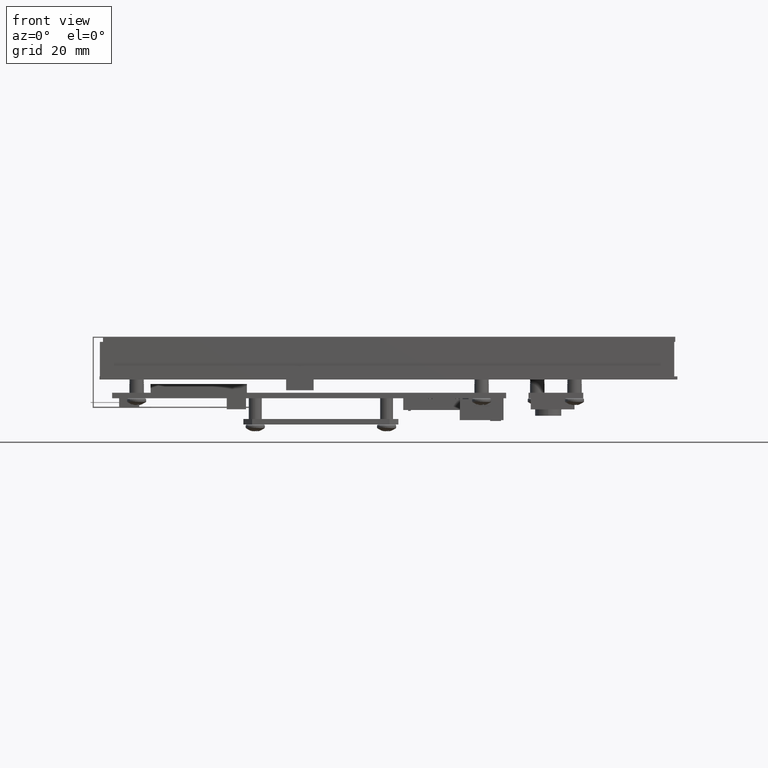
[diagram: clean part render]
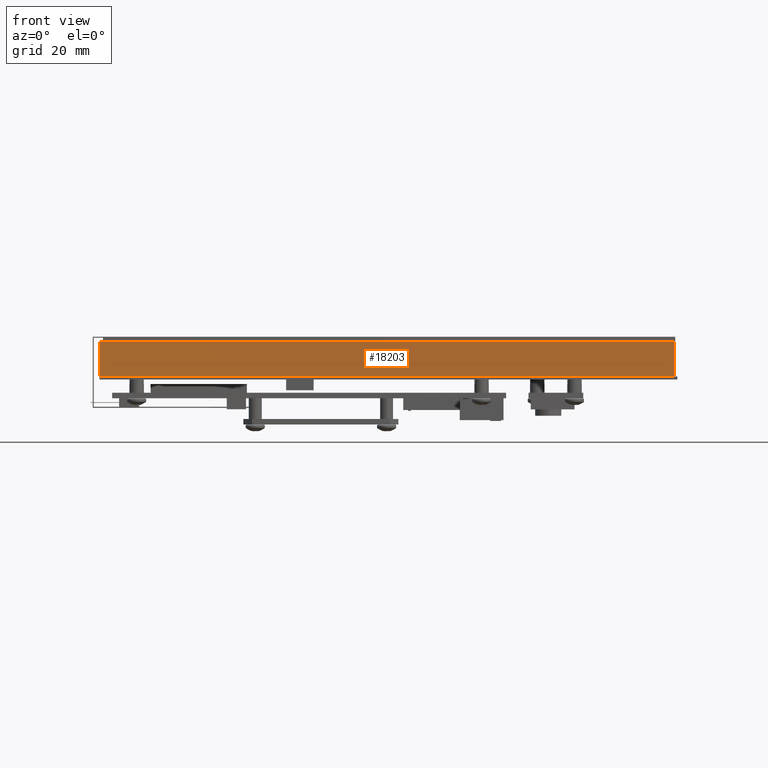
[diagram: same view with one face highlighted and labeled with its STEP entity id]
A machine part, front view. The second image highlights one B-rep face of the part: STEP entity #18203.
In plain terms, the highlighted planar face has unit normal (0, 1, 0).
Its self-contained STEP definition (entity closure, byte-faithful):
#1300 = VECTOR ( 'NONE', #10913, 39.37007874015748100 ) ;
#1315 = VECTOR ( 'NONE', #10982, 39.37007874015748100 ) ;
#1318 = VECTOR ( 'NONE', #11003, 39.37007874015748100 ) ;
#1319 = VECTOR ( 'NONE', #11010, 39.37007874015748100 ) ;
#5974 = AXIS2_PLACEMENT_3D ( 'NONE', #13046, #13058, #13059 ) ;
#8444 = VERTEX_POINT ( 'NONE', #9350 ) ;
#8450 = VERTEX_POINT ( 'NONE', #9354 ) ;
#8452 = VERTEX_POINT ( 'NONE', #9355 ) ;
#8453 = VERTEX_POINT ( 'NONE', #9356 ) ;
#9350 = CARTESIAN_POINT ( 'NONE',  ( -3.279527559055118100, -2.153543307086614300, 0.0000000000000000000 ) ) ;
#9354 = CARTESIAN_POINT ( 'NONE',  ( 3.279527559055118100, -2.153543307086614800, 0.0000000000000000000 ) ) ;
#9355 = CARTESIAN_POINT ( 'NONE',  ( -3.279527559055118100, -2.153543307086614300, 0.3937007874015748300 ) ) ;
#9356 = CARTESIAN_POINT ( 'NONE',  ( 3.279527559055118100, -2.153543307086614800, 0.3937007874015748300 ) ) ;
#10886 = LINE ( 'NONE', #10909, #1300 ) ;
#10909 = CARTESIAN_POINT ( 'NONE',  ( -3.279527559055118100, -2.153543307086614300, 0.0000000000000000000 ) ) ;
#10913 = DIRECTION ( 'NONE',  ( 1.000000000000000000, -8.330004686563300100E-017, 0.0000000000000000000 ) ) ;
#10977 = LINE ( 'NONE', #10980, #1315 ) ;
#10980 = CARTESIAN_POINT ( 'NONE',  ( -3.279527559055118100, -2.153543307086614300, 0.3937007874015748300 ) ) ;
#10982 = DIRECTION ( 'NONE',  ( -0.0000000000000000000, -0.0000000000000000000, -1.000000000000000000 ) ) ;
#10998 = LINE ( 'NONE', #11001, #1318 ) ;
#11001 = CARTESIAN_POINT ( 'NONE',  ( 3.279527559055118100, -2.153543307086614800, 0.3937007874015748300 ) ) ;
#11003 = DIRECTION ( 'NONE',  ( -0.0000000000000000000, -0.0000000000000000000, -1.000000000000000000 ) ) ;
#11005 = LINE ( 'NONE', #11008, #1319 ) ;
#11008 = CARTESIAN_POINT ( 'NONE',  ( -3.279527559055118100, -2.153543307086614300, 0.3937007874015748300 ) ) ;
#11010 = DIRECTION ( 'NONE',  ( 1.000000000000000000, -8.330004686563300100E-017, 0.0000000000000000000 ) ) ;
#13046 = CARTESIAN_POINT ( 'NONE',  ( -3.279527559055118100, -2.153543307086614300, 0.3937007874015748300 ) ) ;
#13055 = FACE_OUTER_BOUND ( 'NONE', #13831, .T. ) ;
#13056 = PLANE ( 'NONE',  #5974 ) ;
#13058 = DIRECTION ( 'NONE',  ( 8.330004686563300100E-017, 1.000000000000000000, -0.0000000000000000000 ) ) ;
#13059 = DIRECTION ( 'NONE',  ( -1.000000000000000000, 8.330004686563300100E-017, 0.0000000000000000000 ) ) ;
#13831 = EDGE_LOOP ( 'NONE', ( #15126, #15127, #15128, #15129 ) ) ;
#15126 = ORIENTED_EDGE ( 'NONE', *, *, #17929, .T. ) ;
#15127 = ORIENTED_EDGE ( 'NONE', *, *, #17941, .F. ) ;
#15128 = ORIENTED_EDGE ( 'NONE', *, *, #17942, .F. ) ;
#15129 = ORIENTED_EDGE ( 'NONE', *, *, #17938, .T. ) ;
#17929 = EDGE_CURVE ( 'NONE', #8444, #8450, #10886, .T. ) ;
#17938 = EDGE_CURVE ( 'NONE', #8452, #8444, #10977, .T. ) ;
#17941 = EDGE_CURVE ( 'NONE', #8453, #8450, #10998, .T. ) ;
#17942 = EDGE_CURVE ( 'NONE', #8452, #8453, #11005, .T. ) ;
#18203 = ADVANCED_FACE ( 'NONE', ( #13055 ), #13056, .F. ) ;